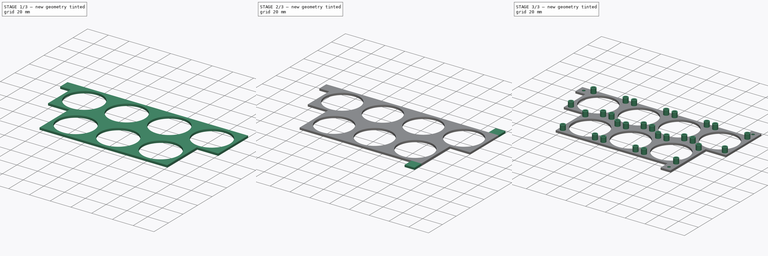
[diagram: build sequence overview — one tinted view per stage of 3, left to right]
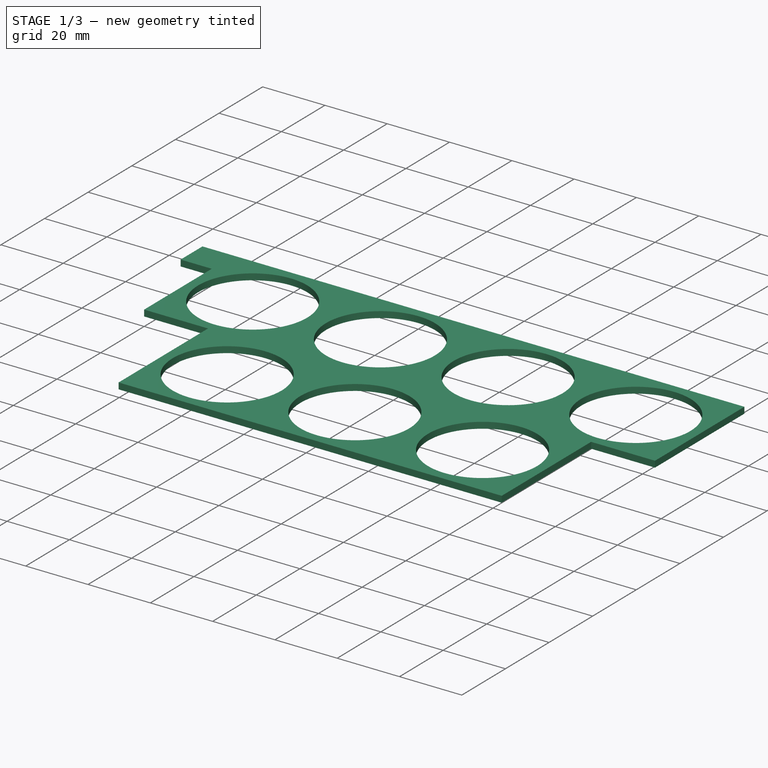
[diagram: stage 1 of 3 — iso view after this stage's code; geometry added in this stage tinted green]
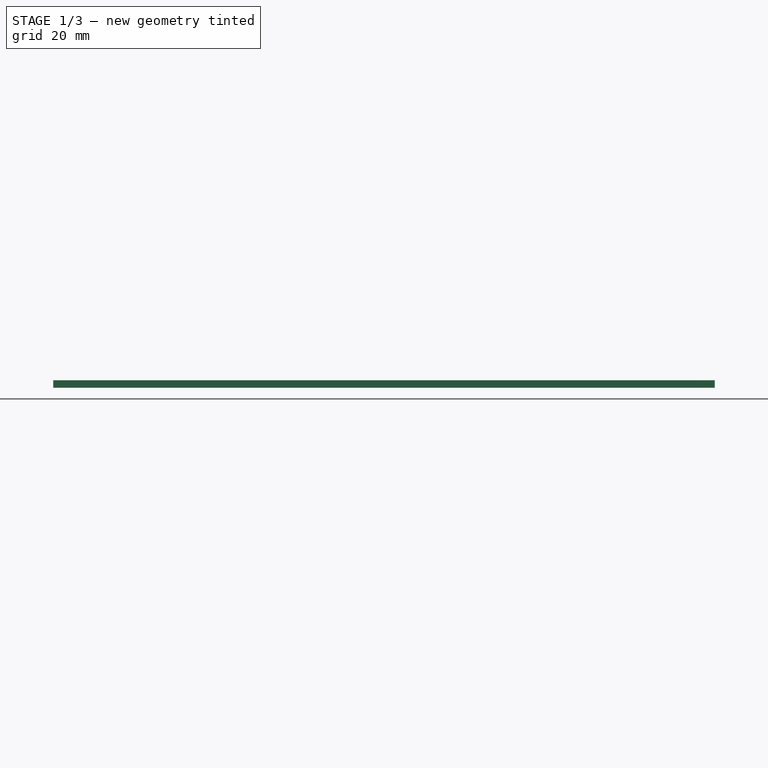
[diagram: stage 1 of 3 — front view after this stage's code; geometry added in this stage tinted green]
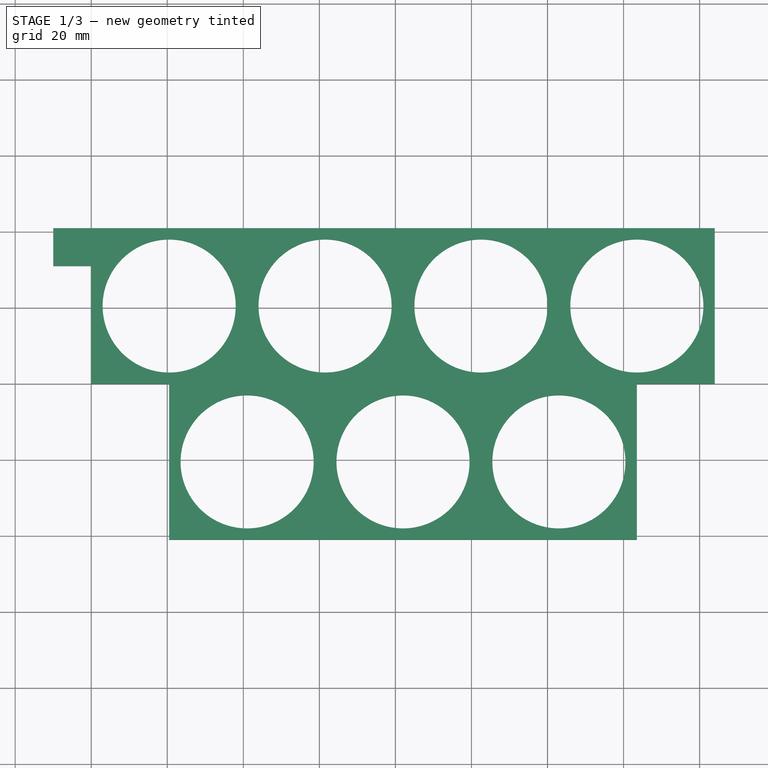
[diagram: stage 1 of 3 — top view after this stage's code; geometry added in this stage tinted green]
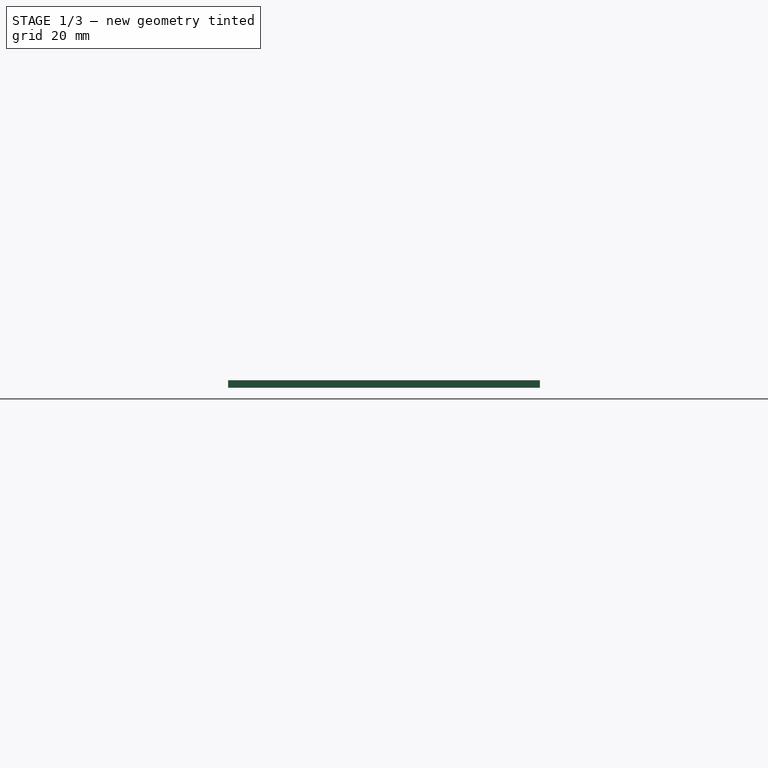
[diagram: stage 1 of 3 — right view after this stage's code; geometry added in this stage tinted green]
FCSTD DOCUMENT  (FreeCAD 0.20R)
Label: fan_cluster_holder
License: All rights reserved
LicenseURL: http://en.wikipedia.org/wiki/All_rights_reserved
objects: Sketcher::SketchObject×6, PartDesign::Pad×5, PartDesign::Pocket×1, PartDesign::Body×1
note: 19 computed .brp shape members not serialized (recipe doc carries the construction recipe); baked Part::Feature solids carry a one-line shape summary decoded from their .brp

FEATURE [Sketcher::SketchObject] Sketch
  FullyConstrained = true
  MapMode = 5
  Support = -> [XY_Plane]
  sketch-geometry (48):
    g0: LineSegment StartX=0 StartY=0 StartZ=0 EndX=0 EndY=20.5 EndZ=0
    g1: LineSegment StartX=0 StartY=20.5 StartZ=0 EndX=0 EndY=41 EndZ=0
    g2: LineSegment StartX=0 StartY=41 StartZ=0 EndX=20.5 EndY=41 EndZ=0
    g3: LineSegment StartX=20.5 StartY=41 StartZ=0 EndX=41 EndY=41 EndZ=0
    g4: LineSegment StartX=0 StartY=0 StartZ=0 EndX=20.5 EndY=0 EndZ=0
    g5: LineSegment StartX=20.5 StartY=0 StartZ=0 EndX=20.5 EndY=-20.5 EndZ=0
    g6: LineSegment StartX=20.5 StartY=-20.5 StartZ=0 EndX=20.5 EndY=-41 EndZ=0
    g7: LineSegment StartX=20.5 StartY=-41 StartZ=0 EndX=41 EndY=-41 EndZ=0
    g8: LineSegment StartX=41 StartY=-41 StartZ=0 EndX=61.5 EndY=-41 EndZ=0
    g9: LineSegment StartX=61.5 StartY=-41 StartZ=0 EndX=82 EndY=-41 EndZ=0
    g10: LineSegment StartX=82 StartY=-41 StartZ=0 EndX=102.5 EndY=-41 EndZ=0
    g11: LineSegment StartX=102.5 StartY=-41 StartZ=0 EndX=123 EndY=-41 EndZ=0
    g12: LineSegment StartX=123 StartY=-41 StartZ=0 EndX=143.5 EndY=-41 EndZ=0
    g13: LineSegment StartX=143.5 StartY=-41 StartZ=0 EndX=143.5 EndY=-20.5 EndZ=0
    g14: LineSegment StartX=143.5 StartY=-20.5 StartZ=0 EndX=143.5 EndY=0 EndZ=0
    g15: LineSegment StartX=143.5 StartY=-1.5e-15 StartZ=0 EndX=164 EndY=-1.5e-15 EndZ=0
    g16: LineSegment StartX=164 StartY=-1.5e-15 StartZ=0 EndX=164 EndY=20.5 EndZ=0
    g17: LineSegment StartX=164 StartY=20.5 StartZ=0 EndX=164 EndY=41 EndZ=0
    g18: LineSegment StartX=102.5 StartY=41 StartZ=0 EndX=82 EndY=41 EndZ=0
    g19: LineSegment StartX=82 StartY=41 StartZ=0 EndX=102.5 EndY=41 EndZ=0
    g20: LineSegment StartX=102.5 StartY=41 StartZ=0 EndX=82 EndY=41 EndZ=0
    g21: LineSegment StartX=82 StartY=41 StartZ=0 EndX=61.5 EndY=41 EndZ=0
    g22: LineSegment StartX=61.5 StartY=41 StartZ=0 EndX=41 EndY=41 EndZ=0
    g23: LineSegment StartX=102.5 StartY=41 StartZ=0 EndX=123 EndY=41 EndZ=0
    g24: LineSegment StartX=123 StartY=41 StartZ=0 EndX=143.5 EndY=41 EndZ=0
    g25: LineSegment StartX=143.5 StartY=41 StartZ=0 EndX=164 EndY=41 EndZ=0
    g26: Circle CenterX=20.5 CenterY=20.5 CenterZ=0 NormalX=0 NormalY=0 NormalZ=1 AngleXU=0 Radius=17.5
    g27: LineSegment StartX=0 StartY=41 StartZ=0 EndX=20.5 EndY=20.5 EndZ=0
    g28: LineSegment StartX=20.5 StartY=20.5 StartZ=0 EndX=41 EndY=41 EndZ=0
    g29: LineSegment StartX=20.5 StartY=20.5 StartZ=0 EndX=0 EndY=0 EndZ=0
    g30: Circle CenterX=61.5 CenterY=20.5 CenterZ=0 NormalX=0 NormalY=0 NormalZ=1 AngleXU=0 Radius=17.5
    g31: Circle CenterX=102.5 CenterY=20.5 CenterZ=0 NormalX=0 NormalY=0 NormalZ=1 AngleXU=0 Radius=17.5
    g32: Circle CenterX=143.5 CenterY=20.5 CenterZ=0 NormalX=0 NormalY=0 NormalZ=1 AngleXU=0 Radius=17.5
    g33: Circle CenterX=41 CenterY=-20.5 CenterZ=0 NormalX=0 NormalY=0 NormalZ=1 AngleXU=0 Radius=17.5
    g34: Circle CenterX=82 CenterY=-20.5 CenterZ=0 NormalX=0 NormalY=0 NormalZ=1 AngleXU=0 Radius=17.5
    g35: Circle CenterX=123 CenterY=-20.5 CenterZ=0 NormalX=0 NormalY=0 NormalZ=1 AngleXU=0 Radius=17.5
    g36: LineSegment StartX=41 StartY=41 StartZ=0 EndX=61.5 EndY=20.5 EndZ=0
    g37: LineSegment StartX=61.5 StartY=20.5 StartZ=0 EndX=82 EndY=41 EndZ=0
    g38: LineSegment StartX=82 StartY=41 StartZ=0 EndX=102.5 EndY=20.5 EndZ=0
    g39: LineSegment StartX=102.5 StartY=20.5 StartZ=0 EndX=123 EndY=41 EndZ=0
    g40: LineSegment StartX=123 StartY=41 StartZ=0 EndX=143.5 EndY=20.5 EndZ=0
    g41: LineSegment StartX=143.5 StartY=20.5 StartZ=0 EndX=164 EndY=41 EndZ=0
    g42: LineSegment StartX=20.5 StartY=-41 StartZ=0 EndX=41 EndY=-20.5 EndZ=0
    g43: LineSegment StartX=61.5 StartY=-41 StartZ=0 EndX=41 EndY=-20.5 EndZ=0
    g44: LineSegment StartX=61.5 StartY=-41 StartZ=0 EndX=82 EndY=-20.5 EndZ=0
    g45: LineSegment StartX=102.5 StartY=-41 StartZ=0 EndX=82 EndY=-20.5 EndZ=0
    g46: LineSegment StartX=102.5 StartY=-41 StartZ=0 EndX=123 EndY=-20.5 EndZ=0
    g47: LineSegment StartX=123 StartY=-20.5 StartZ=0 EndX=143.5 EndY=-41 EndZ=0
  constraints (128):
    c: Coincident(g0,g-1)
    c: Coincident(g1,g0)
    c: Vertical(g1)
    c: Coincident(g2,g1)
    c: Horizontal(g2)
    c: Vertical(g0)
    c: Coincident(g3,g2)
    c: Horizontal(g3)
    c: Equal(g3,g2)
    c: Equal(g2,g1)
    c: Equal(g1,g0)
    c: Distance(g1) = 20.5
    c: Coincident(g4,g0)
    c: Horizontal(g4)
    c: Coincident(g5,g4)
    c: Vertical(g5)
    c: Coincident(g6,g5)
    c: Vertical(g6)
    c: Coincident(g6,g7)
    c: Horizontal(g7)
    c: Coincident(g7,g8)
    c: Horizontal(g8)
    c: Coincident(g8,g9)
    c: Horizontal(g9)
    c: Coincident(g9,g10)
    c: Horizontal(g10)
    c: Coincident(g10,g11)
    c: Horizontal(g11)
    c: Coincident(g11,g12)
    c: Horizontal(g12)
    c: Coincident(g12,g13)
    c: Vertical(g13)
    c: Coincident(g13,g14)
    c: Vertical(g14)
    c: Coincident(g14,g15)
    c: Horizontal(g15)
    c: Coincident(g15,g16)
    c: Vertical(g16)
    c: Coincident(g16,g17)
    c: Vertical(g17)
    c: Horizontal(g18)
    c: Coincident(g18,g19)
    c: Coincident(g19,g20)
    c: Horizontal(g20)
    c: Coincident(g20,g21)
    c: Horizontal(g21)
    c: Coincident(g21,g22)
    c: Coincident(g22,g3)
    c: Horizontal(g22)
    c: Horizontal(g19)
    c: Equal(g3,g22)
    c: Equal(g22,g21)
    c: Equal(g21,g20)
    c: Equal(g20,g19)
    c: Equal(g19,g18)
    c: Coincident(g23,g18)
    c: Horizontal(g23)
    c: Equal(g18,g23)
    c: Equal(g17,g16)
    c: Equal(g16,g15)
    c: Equal(g15,g14)
    c: Equal(g14,g13)
    c: Equal(g5,g4)
    c: Equal(g4,g0)
    c: Equal(g13,g12)
    c: Equal(g7,g6)
    c: Coincident(g23,g24)
    c: Horizontal(g24)
    c: Coincident(g24,g25)
    c: Coincident(g25,g17)
    c: Horizontal(g25)
    c: Equal(g23,g24)
    c: Equal(g24,g25)
    c: Equal(g17,g25)
    c: Equal(g12,g11)
    c: Equal(g10,g9)
    c: Equal(g11,g10)
    c: Diameter(g26) = 35
    c: Coincident(g27,g1)
    c: Coincident(g27,g26)
    c: Coincident(g28,g26)
    c: Coincident(g28,g3)
    c: Coincident(g29,g26)
    c: Coincident(g29,g0)
    c: Equal(g29,g27)
    c: Equal(g27,g28)
    c: Equal(g26,g30) = 35
    c: Equal(g26,g31) = 35
    c: Equal(g26,g32) = 35
    c: Equal(g26,g33) = 35
    c: Equal(g26,g34) = 35
    c: Equal(g26,g35) = 35
    c: Coincident(g36,g3)
    c: Coincident(g36,g30)
    c: Coincident(g37,g30)
    c: Coincident(g37,g18)
    c: Coincident(g38,g18)
    c: Coincident(g38,g31)
    c: Coincident(g39,g31)
    c: Coincident(g39,g23)
    c: Coincident(g40,g23)
    c: Coincident(g40,g32)
    c: Coincident(g41,g32)
    c: Coincident(g41,g17)
    c: Coincident(g42,g6)
    c: Coincident(g42,g33)
    c: Coincident(g43,g8)
    c: Coincident(g43,g33)
    c: Coincident(g44,g8)
    c: Coincident(g44,g34)
    c: Coincident(g45,g10)
    c: Coincident(g45,g34)
    c: Coincident(g46,g10)
    c: Coincident(g46,g35)
    c: Coincident(g47,g35)
    c: Coincident(g47,g12)
    c: Equal(g47,g46)
    c: Equal(g46,g45)
    c: Equal(g45,g44)
    c: Equal(g44,g43)
    c: Equal(g43,g42)
    c: Equal(g42,g36)
    c: Equal(g36,g37)
    c: Equal(g37,g38)
    c: Equal(g38,g39)
    c: Equal(g39,g40)
    c: Equal(g40,g41)
    c: Equal(g41,g28)
FEATURE [PartDesign::Pad] Pad
  Direction = (0,0,1)
  Length = 2
  Length2 = 10
  Profile = -> Sketch
  ReferenceAxis = -> Sketch [N_Axis]
  Type = 0
FEATURE [Sketcher::SketchObject] Sketch001
  ExternalGeometry = -> [Pad]
  FullyConstrained = true
  Placement = pos=(0,0,2) rot=(0,0,1;0rad)
  Support = -> [Pad]
  sketch-geometry (71):
    g0: Circle CenterX=4.25 CenterY=36.75 CenterZ=0 NormalX=0 NormalY=0 NormalZ=1 AngleXU=0 Radius=2.5
    g1: Circle CenterX=36.75 CenterY=36.75 CenterZ=0 NormalX=0 NormalY=0 NormalZ=1 AngleXU=0 Radius=2.5
    g2: Circle CenterX=4.25 CenterY=4.25 CenterZ=0 NormalX=0 NormalY=0 NormalZ=1 AngleXU=0 Radius=2.5
    g3: Circle CenterX=36.75 CenterY=4.25 CenterZ=0 NormalX=0 NormalY=0 NormalZ=1 AngleXU=0 Radius=2.5
    g4: LineSegment StartX=4.25 StartY=36.75 StartZ=0 EndX=36.75 EndY=36.75 EndZ=0
    g5: LineSegment StartX=36.75 StartY=36.75 StartZ=0 EndX=36.75 EndY=4.25 EndZ=0
    g6: LineSegment StartX=36.75 StartY=4.25 StartZ=0 EndX=4.25 EndY=4.25 EndZ=0
    g7: LineSegment StartX=4.25 StartY=4.25 StartZ=0 EndX=4.25 EndY=36.75 EndZ=0
    g8: LineSegment StartX=0 StartY=41 StartZ=0 EndX=4.25 EndY=36.75 EndZ=0
    g9: LineSegment StartX=41 StartY=41 StartZ=0 EndX=36.75 EndY=36.75 EndZ=0
    g10: LineSegment StartX=0 StartY=0 StartZ=0 EndX=4.25 EndY=4.25 EndZ=0
    g11: Circle CenterX=45.25 CenterY=36.75 CenterZ=0 NormalX=0 NormalY=0 NormalZ=1 AngleXU=0 Radius=2.5
    g12: Circle CenterX=77.75 CenterY=36.75 CenterZ=0 NormalX=0 NormalY=0 NormalZ=1 AngleXU=0 Radius=2.5
    g13: Circle CenterX=45.25 CenterY=4.25 CenterZ=0 NormalX=0 NormalY=0 NormalZ=1 AngleXU=0 Radius=2.5
    g14: Circle CenterX=77.75 CenterY=4.25 CenterZ=0 NormalX=0 NormalY=0 NormalZ=1 AngleXU=0 Radius=2.5
    g15: LineSegment StartX=45.25 StartY=36.75 StartZ=0 EndX=77.75 EndY=36.75 EndZ=0
    g16: LineSegment StartX=77.75 StartY=36.75 StartZ=0 EndX=77.75 EndY=4.25 EndZ=0
    g17: LineSegment StartX=77.75 StartY=4.25 StartZ=0 EndX=45.25 EndY=4.25 EndZ=0
    g18: LineSegment StartX=45.25 StartY=4.25 StartZ=0 EndX=45.25 EndY=36.75 EndZ=0
    g19: LineSegment StartX=41 StartY=41 StartZ=0 EndX=45.25 EndY=36.75 EndZ=0
    g20: LineSegment StartX=82 StartY=41 StartZ=0 EndX=77.75 EndY=36.75 EndZ=0
    g21: Circle CenterX=86.25 CenterY=36.75 CenterZ=0 NormalX=0 NormalY=0 NormalZ=1 AngleXU=0 Radius=2.5
    g22: Circle CenterX=118.75 CenterY=36.75 CenterZ=0 NormalX=0 NormalY=0 NormalZ=1 AngleXU=0 Radius=2.5
    g23: Circle CenterX=86.25 CenterY=4.25 CenterZ=0 NormalX=0 NormalY=0 NormalZ=1 AngleXU=0 Radius=2.5
    g24: Circle CenterX=118.75 CenterY=4.25 CenterZ=0 NormalX=0 NormalY=0 NormalZ=1 AngleXU=0 Radius=2.5
    g25: LineSegment StartX=86.25 StartY=36.75 StartZ=0 EndX=118.75 EndY=36.75 EndZ=0
    g26: LineSegment StartX=118.75 StartY=36.75 StartZ=0 EndX=118.75 EndY=4.25 EndZ=0
    g27: LineSegment StartX=118.75 StartY=4.25 StartZ=0 EndX=86.25 EndY=4.25 EndZ=0
    g28: LineSegment StartX=86.25 StartY=4.25 StartZ=0 EndX=86.25 EndY=36.75 EndZ=0
    g29: LineSegment StartX=82 StartY=41 StartZ=0 EndX=86.25 EndY=36.75 EndZ=0
    g30: LineSegment StartX=123 StartY=41 StartZ=0 EndX=118.75 EndY=36.75 EndZ=0
    g31: Circle CenterX=127.25 CenterY=36.75 CenterZ=0 NormalX=0 NormalY=0 NormalZ=1 AngleXU=0 Radius=2.5
    g32: Circle CenterX=159.75 CenterY=36.75 CenterZ=0 NormalX=0 NormalY=0 NormalZ=1 AngleXU=0 Radius=2.5
    g33: Circle CenterX=127.25 CenterY=4.25 CenterZ=0 NormalX=0 NormalY=0 NormalZ=1 AngleXU=0 Radius=2.5
    g34: Circle CenterX=159.75 CenterY=4.25 CenterZ=0 NormalX=0 NormalY=0 NormalZ=1 AngleXU=0 Radius=2.5
    g35: LineSegment StartX=127.25 StartY=36.75 StartZ=0 EndX=159.75 EndY=36.75 EndZ=0
    g36: LineSegment StartX=159.75 StartY=36.75 StartZ=0 EndX=159.75 EndY=4.25 EndZ=0
    g37: LineSegment StartX=159.75 StartY=4.25 StartZ=0 EndX=127.25 EndY=4.25 EndZ=0
    g38: LineSegment StartX=127.25 StartY=4.25 StartZ=0 EndX=127.25 EndY=36.75 EndZ=0
    g39: LineSegment StartX=123 StartY=41 StartZ=0 EndX=127.25 EndY=36.75 EndZ=0
    g40: LineSegment StartX=164 StartY=41 StartZ=0 EndX=159.75 EndY=36.75 EndZ=0
    g41: Circle CenterX=24.75 CenterY=-4.25 CenterZ=0 NormalX=0 NormalY=0 NormalZ=1 AngleXU=0 Radius=2.5
    g42: Circle CenterX=57.25 CenterY=-4.25 CenterZ=0 NormalX=0 NormalY=0 NormalZ=1 AngleXU=0 Radius=2.5
    g43: Circle CenterX=24.75 CenterY=-36.75 CenterZ=0 NormalX=0 NormalY=0 NormalZ=1 AngleXU=0 Radius=2.5
    g44: Circle CenterX=57.25 CenterY=-36.75 CenterZ=0 NormalX=0 NormalY=0 NormalZ=1 AngleXU=0 Radius=2.5
    g45: LineSegment StartX=24.75 StartY=-4.25 StartZ=0 EndX=57.25 EndY=-4.25 EndZ=0
    g46: LineSegment StartX=57.25 StartY=-4.25 StartZ=0 EndX=57.25 EndY=-36.75 EndZ=0
    g47: LineSegment StartX=57.25 StartY=-36.75 StartZ=0 EndX=24.75 EndY=-36.75 EndZ=0
    g48: LineSegment StartX=24.75 StartY=-36.75 StartZ=0 EndX=24.75 EndY=-4.25 EndZ=0
    g49: LineSegment StartX=20.5 StartY=-41 StartZ=0 EndX=24.75 EndY=-36.75 EndZ=0
    g50: LineSegment StartX=57.25 StartY=-36.75 StartZ=0 EndX=61.5 EndY=-41 EndZ=0
    g51: Circle CenterX=65.75 CenterY=-4.25 CenterZ=0 NormalX=0 NormalY=0 NormalZ=1 AngleXU=0 Radius=2.5
    g52: Circle CenterX=98.25 CenterY=-4.25 CenterZ=0 NormalX=0 NormalY=0 NormalZ=1 AngleXU=0 Radius=2.5
    g53: Circle CenterX=65.75 CenterY=-36.75 CenterZ=0 NormalX=0 NormalY=0 NormalZ=1 AngleXU=0 Radius=2.5
    g54: Circle CenterX=98.25 CenterY=-36.75 CenterZ=0 NormalX=0 NormalY=0 NormalZ=1 AngleXU=0 Radius=2.5
    g55: LineSegment StartX=65.75 StartY=-4.25 StartZ=0 EndX=98.25 EndY=-4.25 EndZ=0
    g56: LineSegment StartX=98.25 StartY=-4.25 StartZ=0 EndX=98.25 EndY=-36.75 EndZ=0
    g57: LineSegment StartX=98.25 StartY=-36.75 StartZ=0 EndX=65.75 EndY=-36.75 EndZ=0
    g58: LineSegment StartX=65.75 StartY=-36.75 StartZ=0 EndX=65.75 EndY=-4.25 EndZ=0
    g59: LineSegment StartX=61.5 StartY=-41 StartZ=0 EndX=65.75 EndY=-36.75 EndZ=0
    g60: Circle CenterX=106.75 CenterY=-4.25 CenterZ=0 NormalX=0 NormalY=0 NormalZ=1 AngleXU=0 Radius=2.5
    g61: Circle CenterX=139.25 CenterY=-4.25 CenterZ=0 NormalX=0 NormalY=0 NormalZ=1 AngleXU=0 Radius=2.5
    g62: Circle CenterX=106.75 CenterY=-36.75 CenterZ=0 NormalX=0 NormalY=0 NormalZ=1 AngleXU=0 Radius=2.5
    g63: Circle CenterX=139.25 CenterY=-36.75 CenterZ=0 NormalX=0 NormalY=0 NormalZ=1 AngleXU=0 Radius=2.5
    g64: LineSegment StartX=106.75 StartY=-4.25 StartZ=0 EndX=139.25 EndY=-4.25 EndZ=0
    g65: LineSegment StartX=139.25 StartY=-4.25 StartZ=0 EndX=139.25 EndY=-36.75 EndZ=0
    g66: LineSegment StartX=139.25 StartY=-36.75 StartZ=0 EndX=106.75 EndY=-36.75 EndZ=0
    g67: LineSegment StartX=106.75 StartY=-36.75 StartZ=0 EndX=106.75 EndY=-4.25 EndZ=0
    g68: LineSegment StartX=102.5 StartY=-41 StartZ=0 EndX=106.75 EndY=-36.75 EndZ=0
    g69: LineSegment StartX=98.25 StartY=-36.75 StartZ=0 EndX=102.5 EndY=-41 EndZ=0
    g70: LineSegment StartX=139.25 StartY=-36.75 StartZ=0 EndX=143.5 EndY=-41 EndZ=0
  constraints (170):
    c: Diameter(g0) = 5
    c: Equal(g0,g1) = 5
    c: Equal(g0,g2) = 5
    c: Equal(g0,g3) = 5
    c: Coincident(g4,g5)
    c: Coincident(g5,g6)
    c: Coincident(g6,g7)
    c: Coincident(g7,g4)
    c: Horizontal(g4)
    c: Horizontal(g6)
    c: Vertical(g5)
    c: Vertical(g7)
    c: Coincident(g4,g0)
    c: Coincident(g5,g3)
    c: Coincident(g1,g4)
    c: Coincident(g2,g6)
    c: Equal(g7,g6)
    c: Distance(g4) = 32.5
    c: Coincident(g8,g-4)
    c: Coincident(g8,g0)
    c: Coincident(g9,g-8)
    c: Coincident(g9,g1)
    c: Coincident(g10,g-6)
    c: Coincident(g10,g2)
    c: Equal(g8,g10)
    c: Equal(g10,g9)
    c: Equal(g0,g11) = 5
    c: Equal(g11,g12) = 5
    c: Equal(g11,g13) = 5
    c: Equal(g11,g14) = 5
    c: Coincident(g15,g16)
    c: Coincident(g16,g17)
    c: Coincident(g17,g18)
    c: Coincident(g18,g15)
    c: Horizontal(g15)
    c: Horizontal(g17)
    c: Vertical(g16)
    c: Vertical(g18)
    c: Coincident(g15,g11)
    c: Coincident(g16,g14)
    c: Coincident(g12,g15)
    c: Coincident(g13,g17)
    c: Equal(g18,g17)
    c: Equal(g4,g15) = 32.5
    c: Coincident(g19,g11)
    c: Coincident(g20,g12)
    c: Equal(g9,g19)
    c: Equal(g19,g20)
    c: Coincident(g19,g9)
    c: Coincident(g20,g-10)
    c: Equal(g0,g21) = 5
    c: Equal(g21,g22) = 5
    c: Equal(g21,g23) = 5
    c: Equal(g21,g24) = 5
    c: Coincident(g25,g26)
    c: Coincident(g26,g27)
    c: Coincident(g27,g28)
    c: Coincident(g28,g25)
    c: Horizontal(g25)
    c: Horizontal(g27)
    c: Vertical(g26)
    c: Vertical(g28)
    c: Coincident(g25,g21)
    c: Coincident(g26,g24)
    c: Coincident(g22,g25)
    c: Coincident(g23,g27)
    c: Equal(g28,g27)
    c: Equal(g4,g25) = 32.5
    c: Coincident(g29,g21)
    c: Coincident(g30,g22)
    c: Coincident(g29,g20)
    c: Coincident(g-12,g30)
    c: Equal(g29,g30)
    c: Equal(g30,g9)
    c: Equal(g0,g31) = 5
    c: Equal(g31,g32) = 5
    c: Equal(g31,g33) = 5
    c: Equal(g31,g34) = 5
    c: Coincident(g35,g36)
    c: Coincident(g36,g37)
    c: Coincident(g37,g38)
    c: Coincident(g38,g35)
    c: Horizontal(g35)
    c: Horizontal(g37)
    c: Vertical(g36)
    c: Vertical(g38)
    c: Coincident(g35,g31)
    c: Coincident(g36,g34)
    c: Coincident(g32,g35)
    c: Coincident(g33,g37)
    c: Equal(g38,g37)
    c: Equal(g4,g35) = 32.5
    c: Coincident(g39,g31)
    c: Coincident(g40,g32)
    c: Coincident(g39,g30)
    c: Coincident(g-14,g40)
    c: Equal(g39,g40)
    c: Equal(g40,g9)
    c: Equal(g0,g41) = 5
    c: Equal(g41,g42) = 5
    c: Equal(g41,g43) = 5
    c: Equal(g41,g44) = 5
    c: Coincident(g45,g46)
    c: Coincident(g46,g47)
    c: Coincident(g47,g48)
    c: Coincident(g48,g45)
    c: Horizontal(g45)
    c: Horizontal(g47)
    c: Vertical(g46)
    c: Vertical(g48)
    c: Coincident(g45,g41)
    c: Coincident(g46,g44)
    c: Coincident(g42,g45)
    c: Coincident(g43,g47)
    c: Equal(g48,g47)
    c: Equal(g4,g45) = 32.5
    c: Coincident(g49,g43)
    c: Coincident(g49,g-25)
    c: Coincident(g50,g44)
    c: Coincident(g50,g-23)
    c: Equal(g50,g49)
    c: Equal(g49,g10)
    c: Equal(g0,g51) = 5
    c: Equal(g51,g52) = 5
    c: Equal(g51,g53) = 5
    c: Equal(g51,g54) = 5
    c: Coincident(g55,g56)
    c: Coincident(g56,g57)
    c: Coincident(g57,g58)
    c: Coincident(g58,g55)
    c: Horizontal(g55)
    c: Horizontal(g57)
    c: Vertical(g56)
    c: Vertical(g58)
    c: Coincident(g55,g51)
    c: Coincident(g56,g54)
    c: Coincident(g52,g55)
    c: Coincident(g53,g57)
    c: Equal(g58,g57)
    c: Equal(g4,g55) = 32.5
    c: Coincident(g59,g53)
    c: Equal(g0,g60) = 5
    c: Equal(g60,g61) = 5
    c: Equal(g60,g62) = 5
    c: Equal(g60,g63) = 5
    c: Coincident(g64,g65)
    c: Coincident(g65,g66)
    c: Coincident(g66,g67)
    c: Coincident(g67,g64)
    c: Horizontal(g64)
    c: Horizontal(g66)
    c: Vertical(g65)
    c: Vertical(g67)
    c: Coincident(g64,g60)
    c: Coincident(g65,g63)
    c: Coincident(g61,g64)
    c: Coincident(g62,g66)
    c: Equal(g67,g66)
    c: Equal(g4,g64) = 32.5
    c: Coincident(g68,g62)
    c: Coincident(g59,g50)
    c: Coincident(g68,g-21)
    c: Coincident(g69,g54)
    c: Coincident(g69,g68)
    c: Coincident(g70,g63)
    c: Coincident(g70,g-19)
    c: Equal(g70,g68)
    c: Equal(g68,g69)
    c: Equal(g69,g59)
    c: Equal(g59,g10)
FEATURE [Sketcher::SketchObject] Sketch002
  FullyConstrained = false
  MapMode = 5
  Placement = pos=(0,0,0) rot=(0.57735,-0.57735,-0.57735;2.0944rad)
  sketch-geometry (4):
    g0: LineSegment StartX=-41 StartY=2 StartZ=0 EndX=-31 EndY=2 EndZ=0
    g1: LineSegment StartX=-31 StartY=2 StartZ=0 EndX=-31 EndY=0 EndZ=0
    g2: LineSegment StartX=-31 StartY=0 StartZ=0 EndX=-41 EndY=0 EndZ=0
    g3: LineSegment StartX=-41 StartY=0 StartZ=0 EndX=-41 EndY=2 EndZ=0
  constraints (10):
    c: Coincident(g0,g1)
    c: Coincident(g1,g2)
    c: Coincident(g2,g3)
    c: Coincident(g3,g0)
    c: Horizontal(g0)
    c: Horizontal(g2)
    c: Vertical(g1)
    c: Vertical(g3)
    c: PointOnObject(g1,g-1)
    c: Distance(g2) = 10
FEATURE [PartDesign::Pad] Pad003
  BaseFeature = -> Pad
  Direction = (-1,0,0)
  Length = 10
  Length2 = 10
  Profile = -> Sketch002
  ReferenceAxis = -> Sketch002 [N_Axis]
  Type = 0
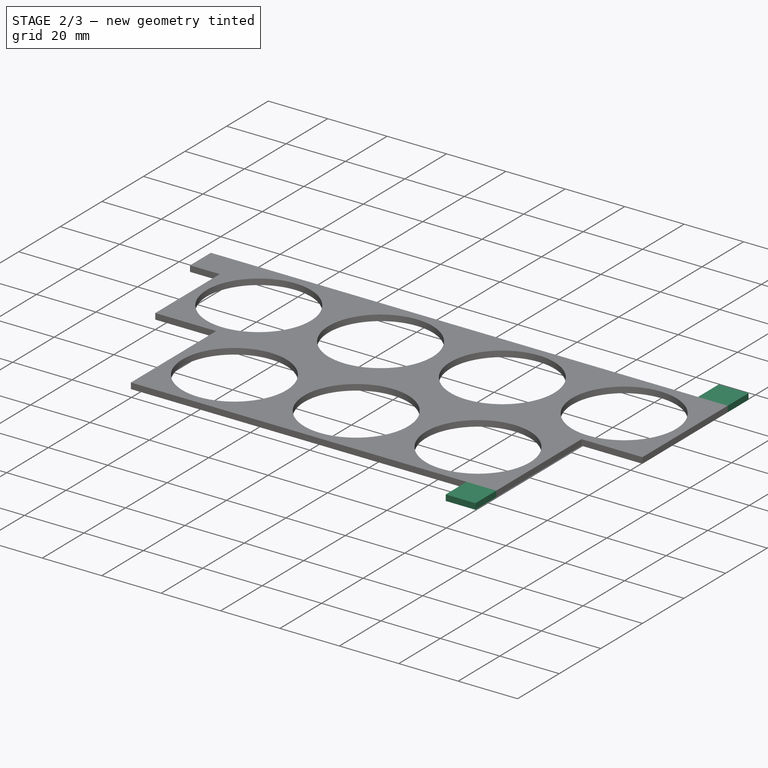
[diagram: stage 2 of 3 — iso view after this stage's code; geometry added in this stage tinted green]
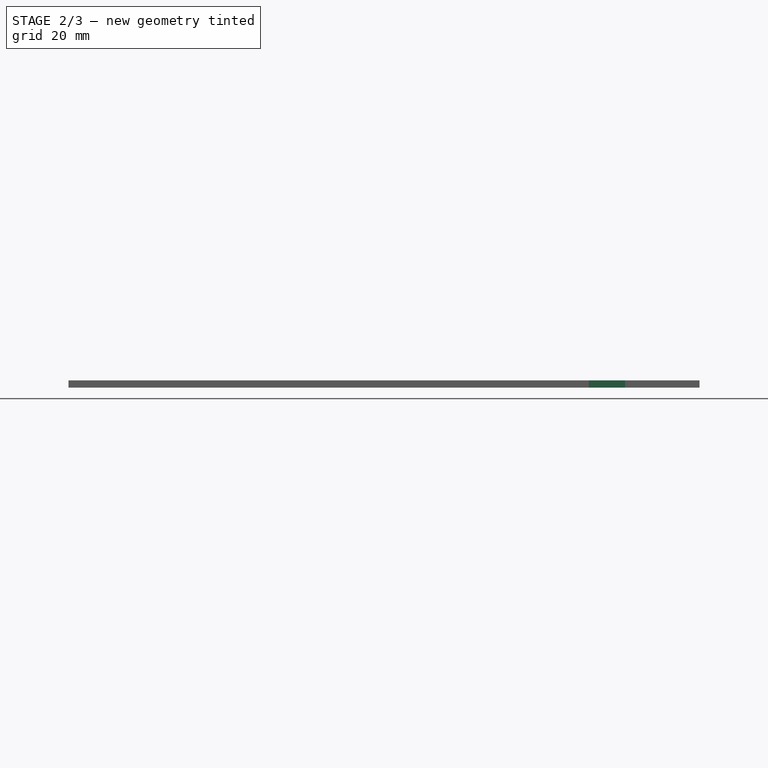
[diagram: stage 2 of 3 — front view after this stage's code; geometry added in this stage tinted green]
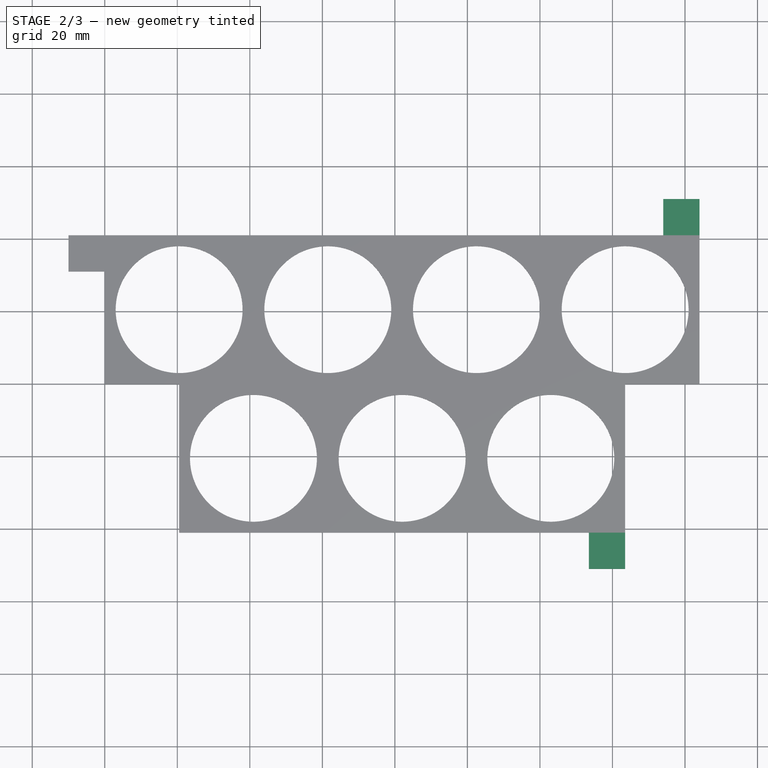
[diagram: stage 2 of 3 — top view after this stage's code; geometry added in this stage tinted green]
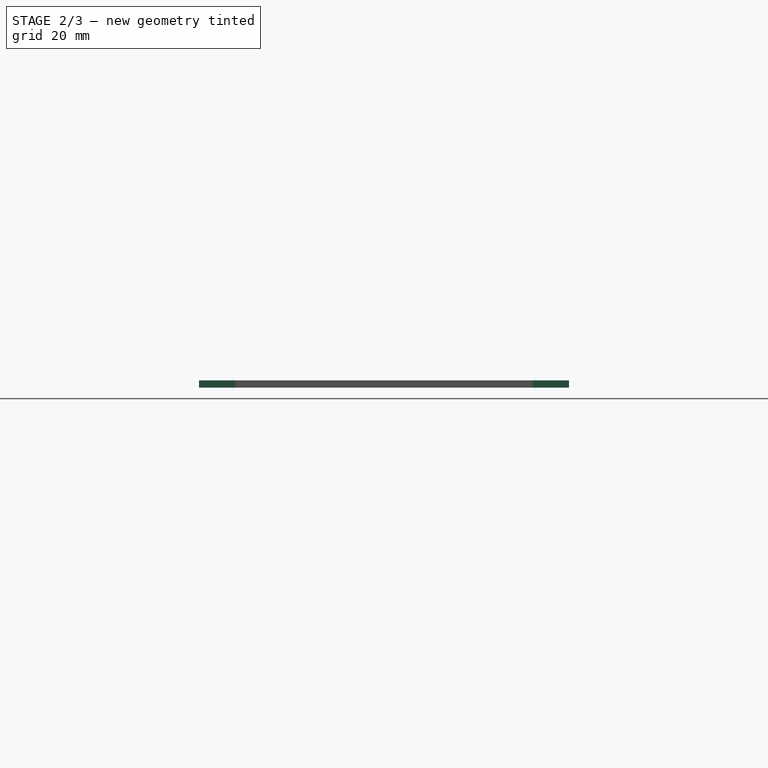
[diagram: stage 2 of 3 — right view after this stage's code; geometry added in this stage tinted green]
FEATURE [Sketcher::SketchObject] Sketch003
  ExternalGeometry = -> [Pad003]
  FullyConstrained = true
  MapMode = 5
  Placement = pos=(0,-41,0) rot=(1,0,0;1.5708rad)
  Support = -> [Pad003]
  sketch-geometry (4):
    g0: LineSegment StartX=143.5 StartY=2 StartZ=0 EndX=133.5 EndY=2 EndZ=0
    g1: LineSegment StartX=133.5 StartY=2 StartZ=0 EndX=133.5 EndY=0 EndZ=0
    g2: LineSegment StartX=133.5 StartY=0 StartZ=0 EndX=143.5 EndY=0 EndZ=0
    g3: LineSegment StartX=143.5 StartY=0 StartZ=0 EndX=143.5 EndY=2 EndZ=0
  constraints (11):
    c: Coincident(g0,g1)
    c: Coincident(g1,g2)
    c: Coincident(g2,g3)
    c: Coincident(g3,g0)
    c: Horizontal(g0)
    c: Horizontal(g2)
    c: Vertical(g1)
    c: Vertical(g3)
    c: Coincident(g0,g-4)
    c: PointOnObject(g1,g-1)
    c: Distance(g2) = 10
FEATURE [PartDesign::Pad] Pad004
  BaseFeature = -> Pad003
  Direction = (0,-1,2e-16)
  Length = 10
  Length2 = 10
  Profile = -> Sketch003
  ReferenceAxis = -> Sketch003 [N_Axis]
  Type = 0
FEATURE [Sketcher::SketchObject] Sketch006
  ExternalGeometry = -> [Pad004]
  FullyConstrained = true
  MapMode = 5
  Placement = pos=(0,41,0) rot=(0,0.707107,0.707107;3.14159rad)
  Support = -> [Pad004]
  sketch-geometry (4):
    g0: LineSegment StartX=-164 StartY=2 StartZ=0 EndX=-154 EndY=2 EndZ=0
    g1: LineSegment StartX=-154 StartY=2 StartZ=0 EndX=-154 EndY=0 EndZ=0
    g2: LineSegment StartX=-154 StartY=0 StartZ=0 EndX=-164 EndY=0 EndZ=0
    g3: LineSegment StartX=-164 StartY=0 StartZ=0 EndX=-164 EndY=2 EndZ=0
  constraints (11):
    c: Coincident(g0,g1)
    c: Coincident(g1,g2)
    c: Coincident(g2,g3)
    c: Coincident(g3,g0)
    c: Horizontal(g0)
    c: Horizontal(g2)
    c: Vertical(g1)
    c: Vertical(g3)
    c: Coincident(g0,g-4)
    c: PointOnObject(g1,g-1)
    c: Distance(g2) = 10
FEATURE [PartDesign::Pad] Pad007
  BaseFeature = -> Pad004
  Direction = (0,1,-2e-16)
  Length = 10
  Length2 = 10
  Profile = -> Sketch006
  ReferenceAxis = -> Sketch006 [N_Axis]
  Type = 0
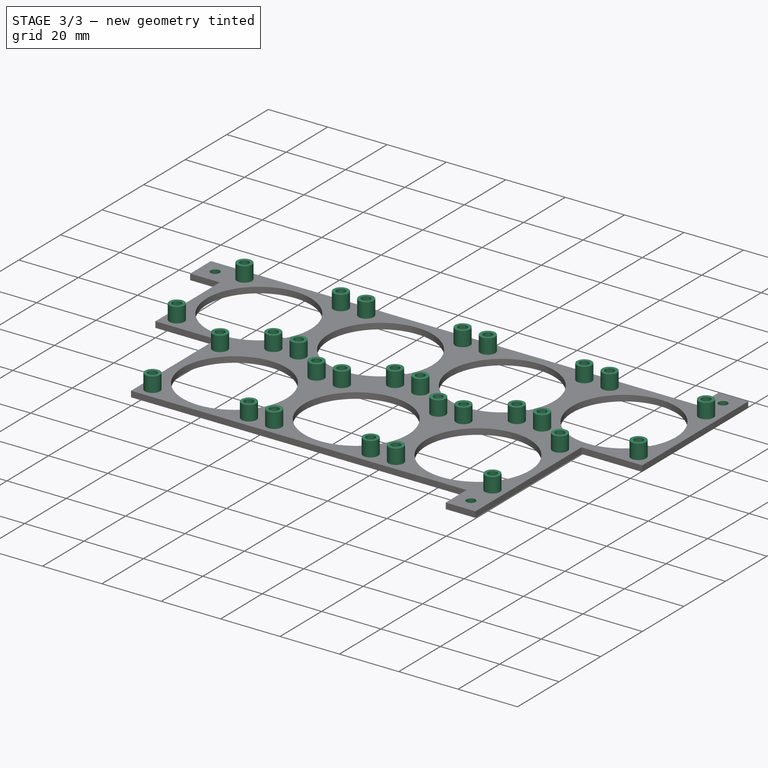
[diagram: stage 3 of 3 — iso view after this stage's code; geometry added in this stage tinted green]
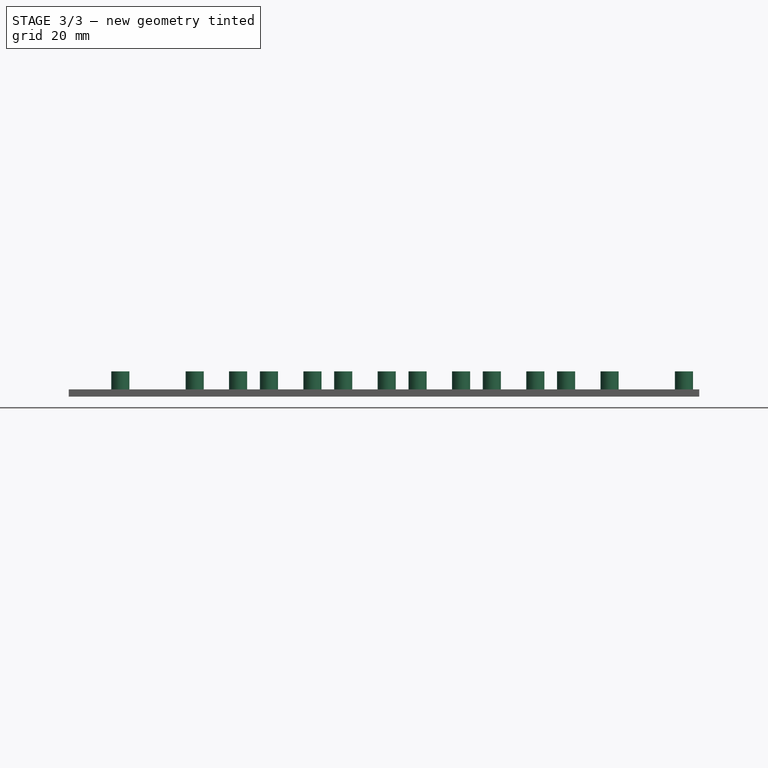
[diagram: stage 3 of 3 — front view after this stage's code; geometry added in this stage tinted green]
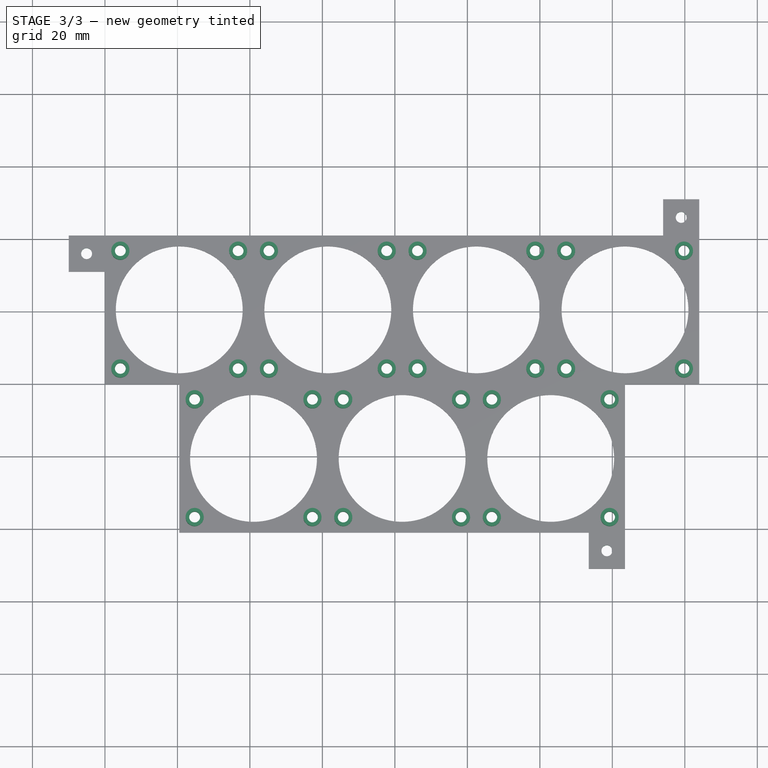
[diagram: stage 3 of 3 — top view after this stage's code; geometry added in this stage tinted green]
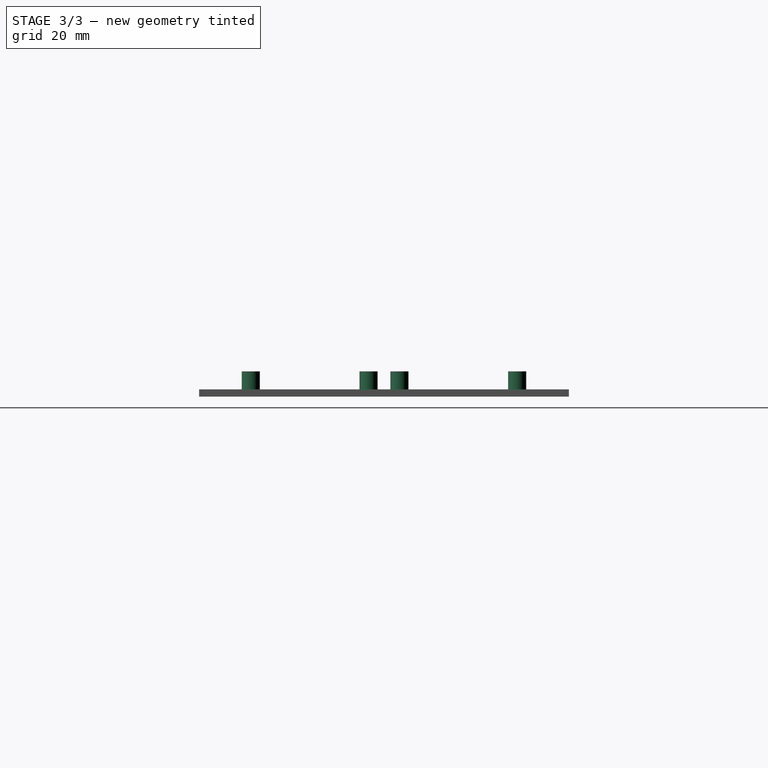
[diagram: stage 3 of 3 — right view after this stage's code; geometry added in this stage tinted green]
FEATURE [PartDesign::Pad] Pad006
  BaseFeature = -> Pad007
  Direction = (0,0,1)
  Length = 5
  Length2 = 10
  Profile = -> Sketch001
  ReferenceAxis = -> Sketch001 [N_Axis]
  Type = 0
FEATURE [Sketcher::SketchObject] Sketch005
  ExternalGeometry = -> [Pad006]
  FullyConstrained = false
  MapMode = 5
  Placement = pos=(0,0,7) rot=(0,0,1;0rad)
  Support = -> [Pad006]
  sketch-geometry (40):
    g0: Circle CenterX=-5.05894 CenterY=36 CenterZ=0 NormalX=0 NormalY=0 NormalZ=1 AngleXU=0 Radius=1.5
    g1: LineSegment StartX=-10 StartY=41 StartZ=0 EndX=-5.05894 EndY=36 EndZ=0
    g2: LineSegment StartX=-5.05894 StartY=36 StartZ=0 EndX=-10 EndY=31 EndZ=0
    g3: LineSegment StartX=0 StartY=40.8807 StartZ=0 EndX=-5.05894 EndY=36 EndZ=0
    g4: Circle CenterX=4.25 CenterY=36.75 CenterZ=0 NormalX=0 NormalY=0 NormalZ=1 AngleXU=0 Radius=1.5
    g5: Circle CenterX=36.75 CenterY=36.75 CenterZ=0 NormalX=0 NormalY=0 NormalZ=1 AngleXU=0 Radius=1.5
    g6: Circle CenterX=45.25 CenterY=36.75 CenterZ=0 NormalX=0 NormalY=0 NormalZ=1 AngleXU=0 Radius=1.5
    g7: Circle CenterX=77.75 CenterY=36.75 CenterZ=0 NormalX=0 NormalY=0 NormalZ=1 AngleXU=0 Radius=1.5
    g8: Circle CenterX=86.25 CenterY=36.75 CenterZ=0 NormalX=0 NormalY=0 NormalZ=1 AngleXU=0 Radius=1.5
    g9: Circle CenterX=4.25 CenterY=4.25 CenterZ=0 NormalX=0 NormalY=0 NormalZ=1 AngleXU=0 Radius=1.5
    g10: Circle CenterX=36.75 CenterY=4.25 CenterZ=0 NormalX=0 NormalY=0 NormalZ=1 AngleXU=0 Radius=1.5
    g11: Circle CenterX=45.25 CenterY=4.25 CenterZ=0 NormalX=0 NormalY=0 NormalZ=1 AngleXU=0 Radius=1.5
    g12: Circle CenterX=77.75 CenterY=4.25 CenterZ=0 NormalX=0 NormalY=0 NormalZ=1 AngleXU=0 Radius=1.5
    g13: Circle CenterX=86.25 CenterY=4.25 CenterZ=0 NormalX=0 NormalY=0 NormalZ=1 AngleXU=0 Radius=1.5
    g14: Circle CenterX=118.75 CenterY=36.75 CenterZ=0 NormalX=0 NormalY=0 NormalZ=1 AngleXU=0 Radius=1.5
    g15: Circle CenterX=118.75 CenterY=4.25 CenterZ=0 NormalX=0 NormalY=0 NormalZ=1 AngleXU=0 Radius=1.5
    g16: Circle CenterX=127.25 CenterY=36.75 CenterZ=0 NormalX=0 NormalY=0 NormalZ=1 AngleXU=0 Radius=1.5
    g17: Circle CenterX=127.25 CenterY=4.25 CenterZ=0 NormalX=0 NormalY=0 NormalZ=1 AngleXU=0 Radius=1.5
    g18: Circle CenterX=159.75 CenterY=36.75 CenterZ=0 NormalX=0 NormalY=0 NormalZ=1 AngleXU=0 Radius=1.5
    g19: Circle CenterX=159.75 CenterY=4.25 CenterZ=0 NormalX=0 NormalY=0 NormalZ=1 AngleXU=0 Radius=1.5
    g20: Circle CenterX=106.75 CenterY=-4.25 CenterZ=0 NormalX=0 NormalY=0 NormalZ=1 AngleXU=0 Radius=1.5
    g21: Circle CenterX=139.25 CenterY=-4.25 CenterZ=0 NormalX=0 NormalY=0 NormalZ=1 AngleXU=0 Radius=1.5
    g22: Circle CenterX=139.25 CenterY=-36.75 CenterZ=0 NormalX=0 NormalY=0 NormalZ=1 AngleXU=0 Radius=1.5
    g23: Circle CenterX=106.75 CenterY=-36.75 CenterZ=0 NormalX=0 NormalY=0 NormalZ=1 AngleXU=0 Radius=1.5
    g24: Circle CenterX=24.75 CenterY=-4.25 CenterZ=0 NormalX=0 NormalY=0 NormalZ=1 AngleXU=0 Radius=1.5
    g25: Circle CenterX=57.25 CenterY=-4.25 CenterZ=0 NormalX=0 NormalY=0 NormalZ=1 AngleXU=0 Radius=1.5
    g26: Circle CenterX=65.75 CenterY=-4.25 CenterZ=0 NormalX=0 NormalY=0 NormalZ=1 AngleXU=0 Radius=1.5
    g27: Circle CenterX=98.25 CenterY=-4.25 CenterZ=0 NormalX=0 NormalY=0 NormalZ=1 AngleXU=0 Radius=1.5
    g28: Circle CenterX=24.75 CenterY=-36.75 CenterZ=0 NormalX=0 NormalY=0 NormalZ=1 AngleXU=0 Radius=1.5
    g29: Circle CenterX=57.25 CenterY=-36.75 CenterZ=0 NormalX=0 NormalY=0 NormalZ=1 AngleXU=0 Radius=1.5
    g30: Circle CenterX=65.75 CenterY=-36.75 CenterZ=0 NormalX=0 NormalY=0 NormalZ=1 AngleXU=0 Radius=1.5
    g31: Circle CenterX=98.25 CenterY=-36.75 CenterZ=0 NormalX=0 NormalY=0 NormalZ=1 AngleXU=0 Radius=1.5
    g32: Circle CenterX=138.5 CenterY=-46 CenterZ=0 NormalX=0 NormalY=0 NormalZ=1 AngleXU=0 Radius=1.5
    g33: LineSegment StartX=143.5 StartY=-41 StartZ=0 EndX=138.5 EndY=-46 EndZ=0
    g34: LineSegment StartX=138.5 StartY=-46 StartZ=0 EndX=133.5 EndY=-51 EndZ=0
    g35: LineSegment StartX=138.5 StartY=-46 StartZ=0 EndX=143.5 EndY=-51 EndZ=0
    g36: Circle CenterX=159 CenterY=46 CenterZ=0 NormalX=0 NormalY=0 NormalZ=1 AngleXU=0 Radius=1.5
    g37: LineSegment StartX=154 StartY=51 StartZ=0 EndX=159 EndY=46 EndZ=0
    g38: LineSegment StartX=159 StartY=46 StartZ=0 EndX=164 EndY=41 EndZ=0
    g39: LineSegment StartX=164 StartY=51 StartZ=0 EndX=159 EndY=46 EndZ=0
  constraints (50):
    c: Coincident(g1,g0)
    c: Coincident(g2,g0)
    c: PointOnObject(g3,g-2)
    c: Coincident(g3,g0)
    c: Equal(g3,g1)
    c: Equal(g1,g2)
    c: Diameter(g0) = 3
    c: Equal(g0,g4) = 2
    c: Equal(g0,g5) = 2
    c: Equal(g0,g6) = 2
    c: Equal(g0,g7) = 2
    c: Equal(g0,g8) = 2
    c: Equal(g0,g9) = 2
    c: Equal(g0,g10) = 2
    c: Equal(g0,g11) = 2
    c: Equal(g0,g12) = 2
    c: Equal(g0,g13) = 2
    c: Equal(g0,g14) = 2
    c: Equal(g0,g15) = 2
    c: Equal(g0,g16) = 2
    c: Equal(g0,g17) = 2
    c: Equal(g0,g18) = 2
    c: Equal(g0,g19) = 2
    c: Equal(g0,g20) = 2
    c: Equal(g0,g21) = 2
    c: Equal(g0,g22) = 2
    c: Equal(g0,g23) = 2
    c: Equal(g0,g24) = 2
    c: Equal(g0,g25) = 2
    c: Equal(g0,g26) = 2
    c: Equal(g0,g27) = 2
    c: Equal(g0,g28) = 2
    c: Equal(g0,g29) = 2
    c: Equal(g0,g30) = 2
    c: Equal(g0,g31) = 2
    c: Equal(g0,g32) = 2
    c: Coincident(g33,g32)
    c: Coincident(g34,g32)
    c: Coincident(g35,g32)
    c: Equal(g33,g35)
    c: Equal(g35,g34)
    c: Equal(g0,g36) = 2
    c: Coincident(g37,g-8)
    c: Coincident(g37,g36)
    c: Coincident(g38,g36)
    c: Coincident(g38,g-7)
    c: Coincident(g39,g-8)
    c: Coincident(g39,g36)
    c: Equal(g38,g39)
    c: Equal(g39,g37)
FEATURE [PartDesign::Pocket] Pocket
  BaseFeature = -> Pad006
  Direction = (0,0,-1)
  Length = 5
  Length2 = 5
  Profile = -> Sketch005
  ReferenceAxis = -> Sketch005 [N_Axis]
  Type = 1
FEATURE [PartDesign::Body] Body
  Group = -> [Sketch,Pad,Sketch002,Pad003,Sketch003,Pad004,Pad007,Sketch006,Sketch001,Pad006,Sketch005,Pocket]
  Origin = -> Origin
  Tip = -> Pocket
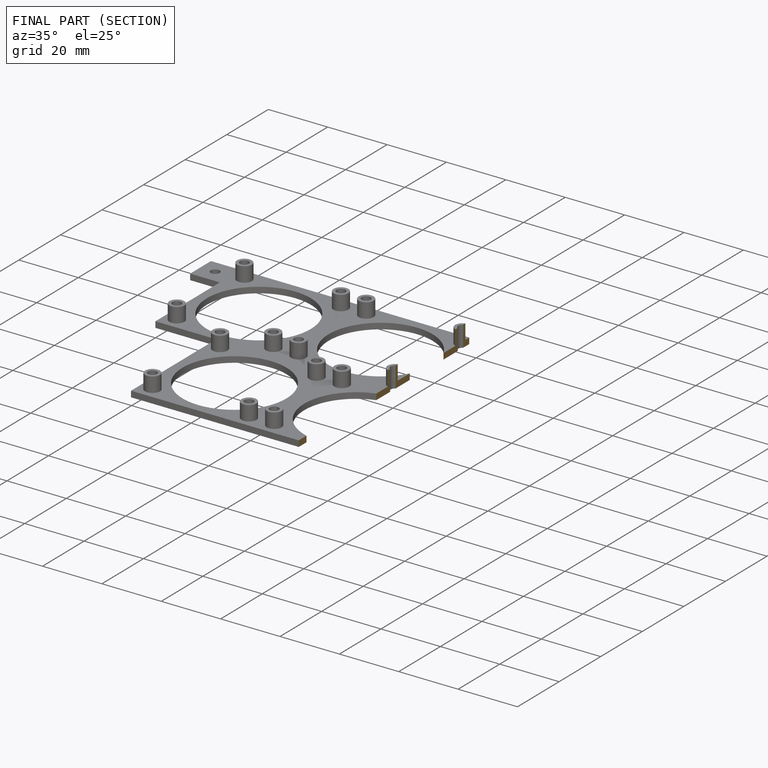
[diagram: finished part — half-section view (interior)]
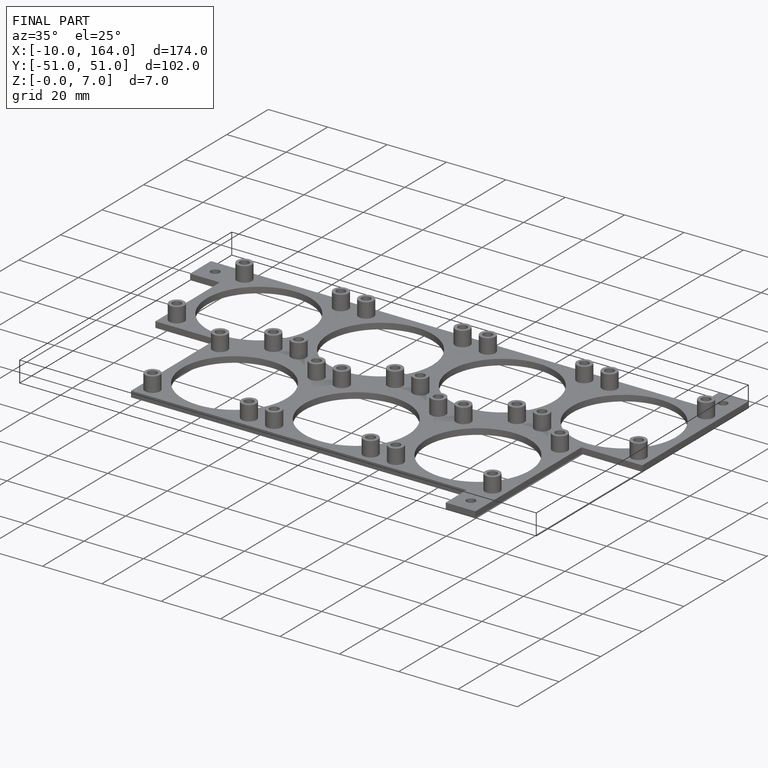
[diagram: finished part — iso view with bounding-box wireframe]
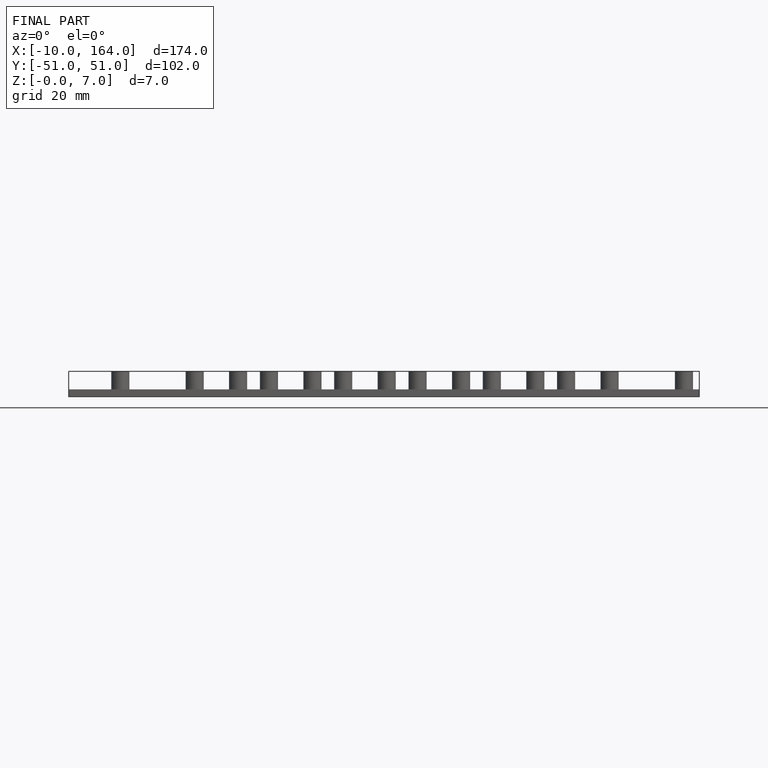
[diagram: finished part — front view with bounding-box wireframe]
